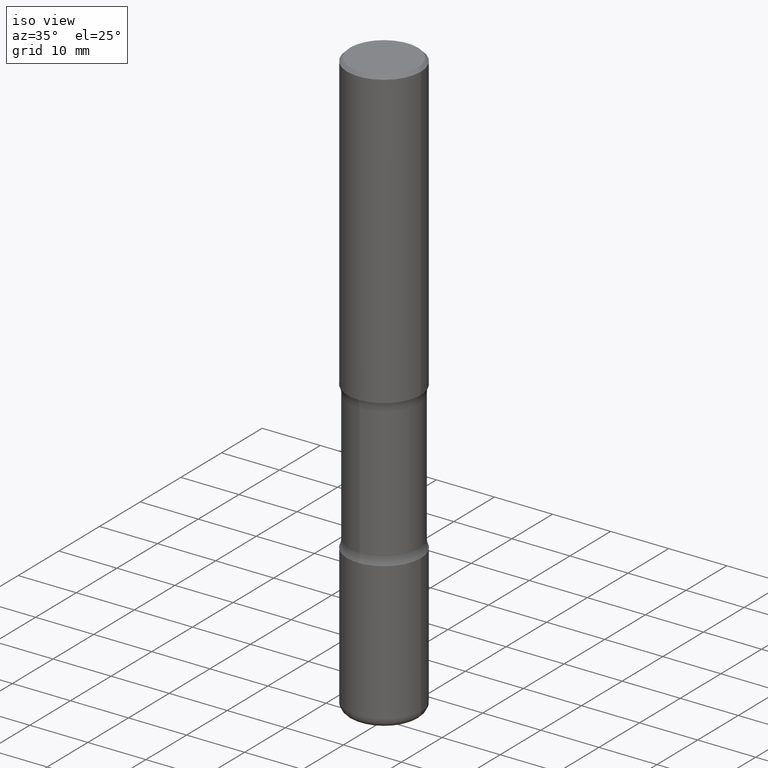
[diagram: clean part render]
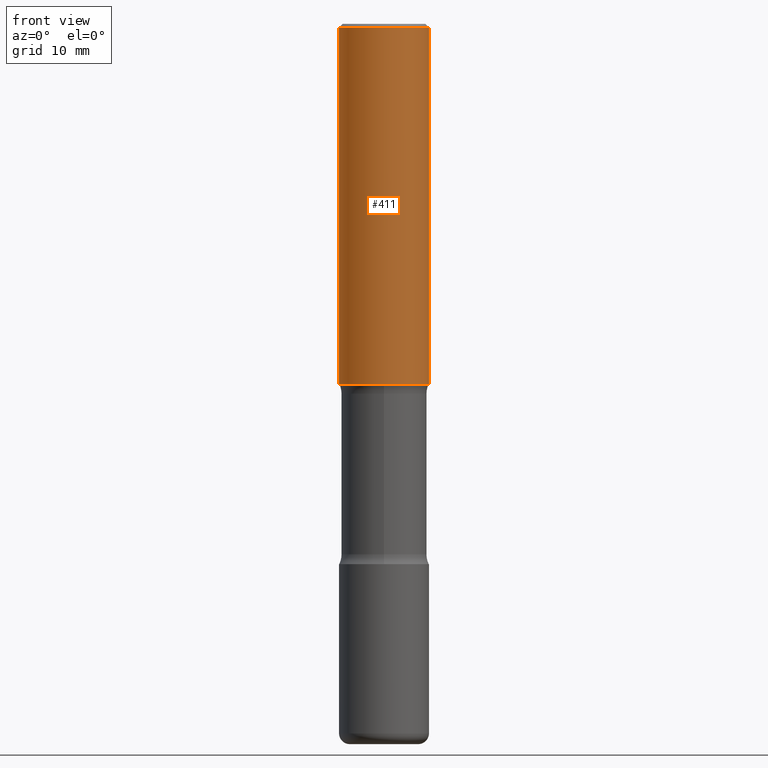
[diagram: tour spotlight — one face highlighted and labeled with its STEP entity id]
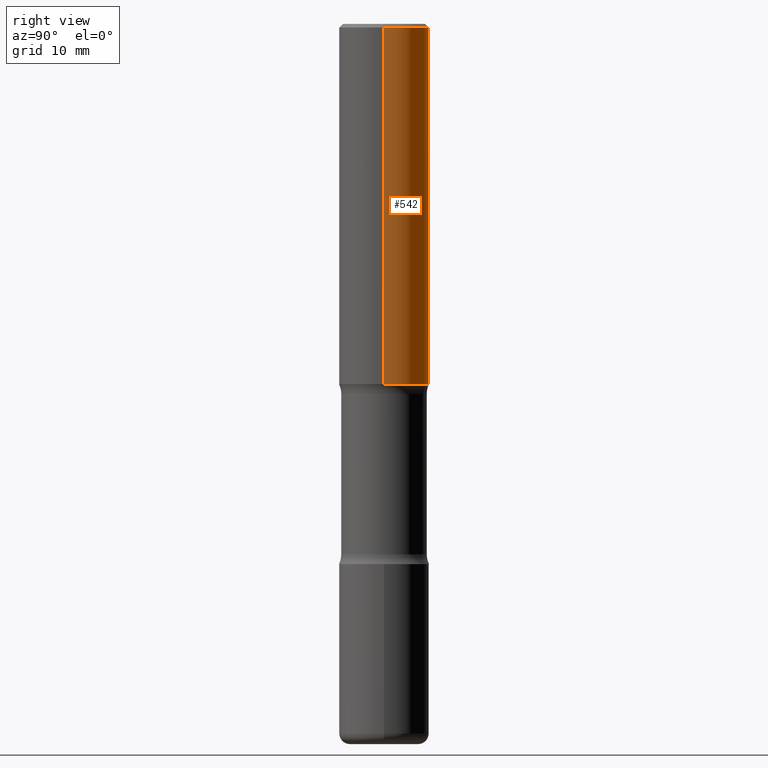
[diagram: tour spotlight — one face highlighted and labeled with its STEP entity id]
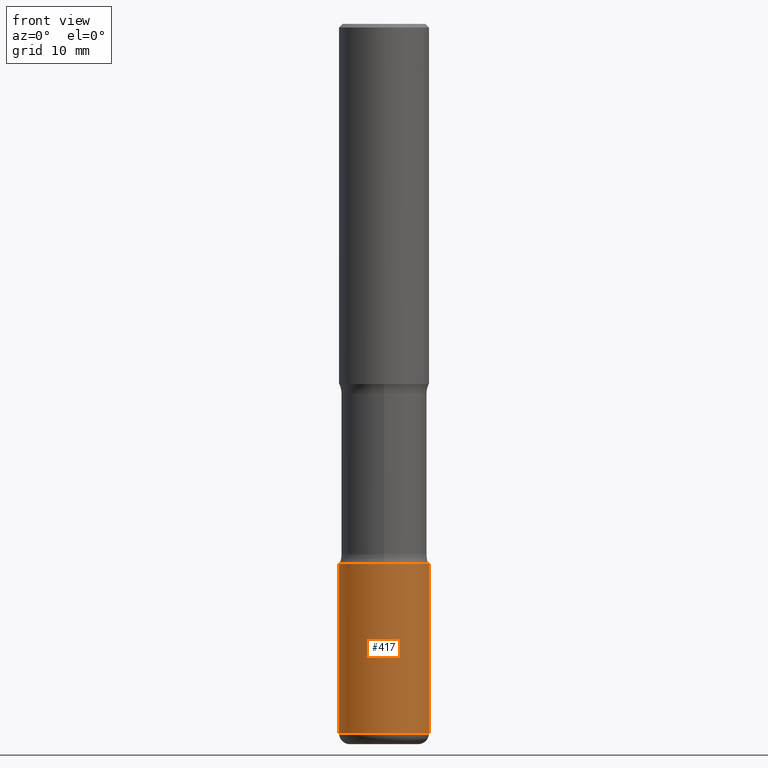
[diagram: tour spotlight — one face highlighted and labeled with its STEP entity id]
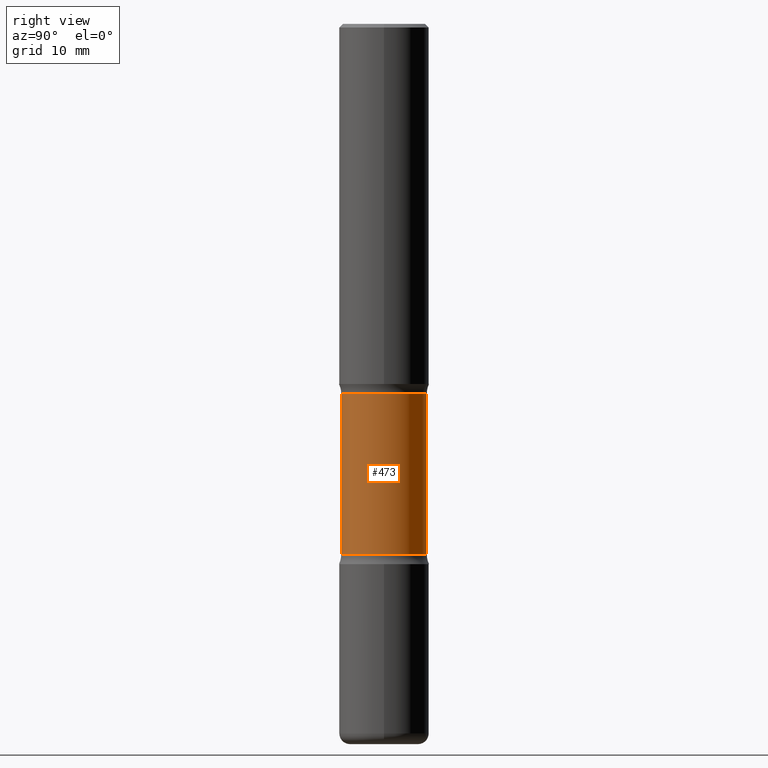
[diagram: tour spotlight — one face highlighted and labeled with its STEP entity id]
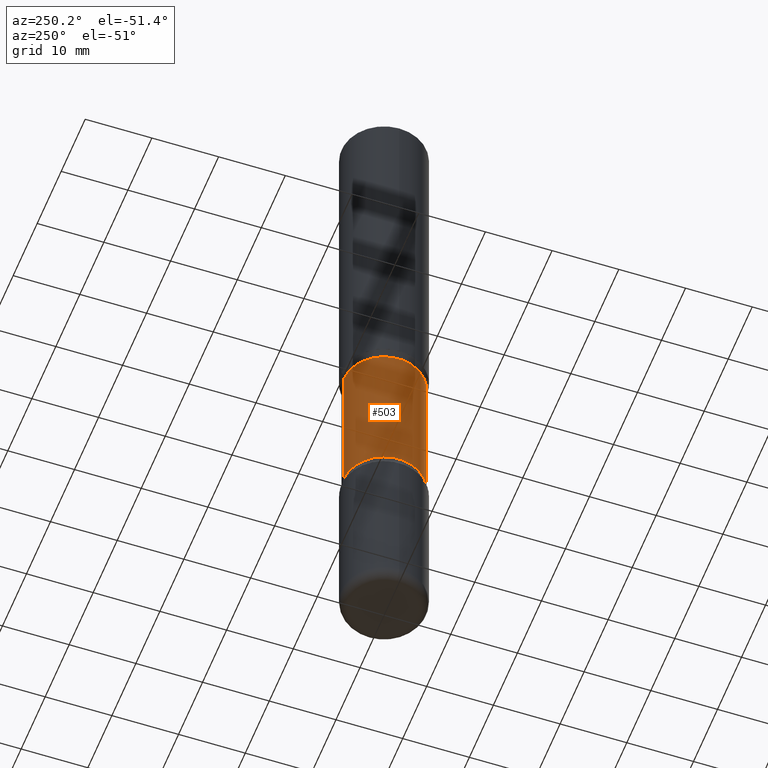
[diagram: tour spotlight — one face highlighted and labeled with its STEP entity id]
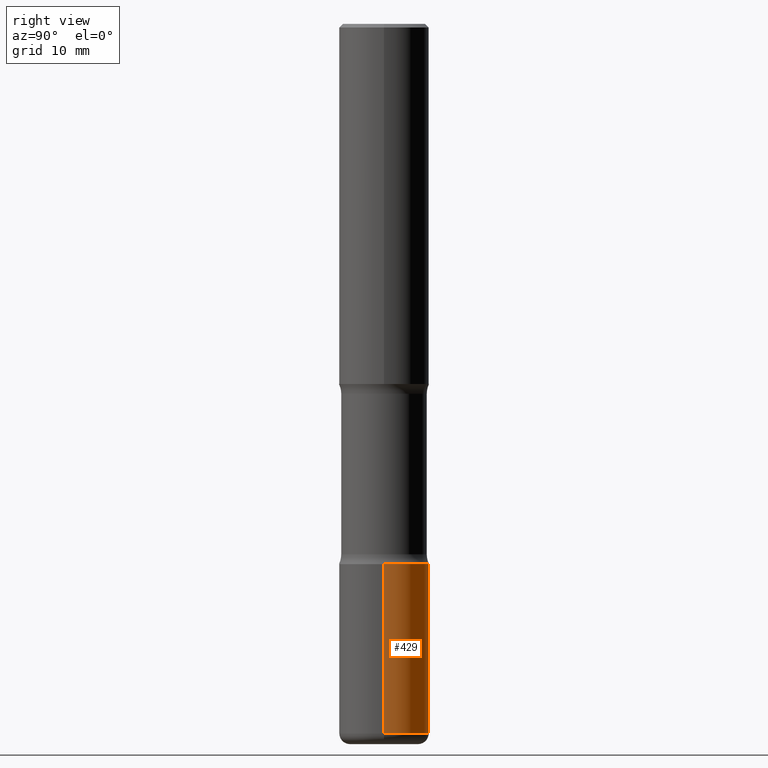
[diagram: tour spotlight — one face highlighted and labeled with its STEP entity id]
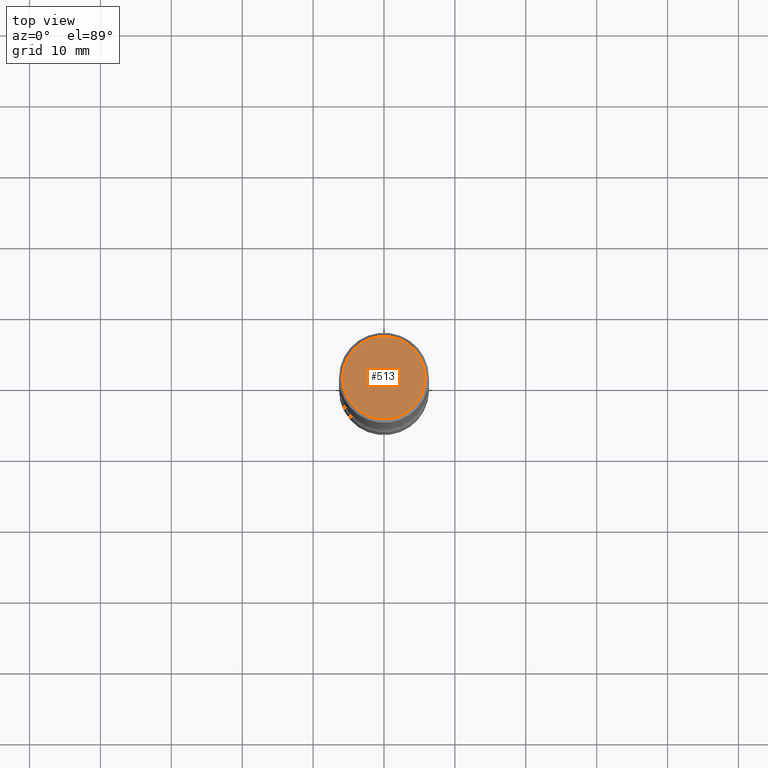
[diagram: tour spotlight — one face highlighted and labeled with its STEP entity id]
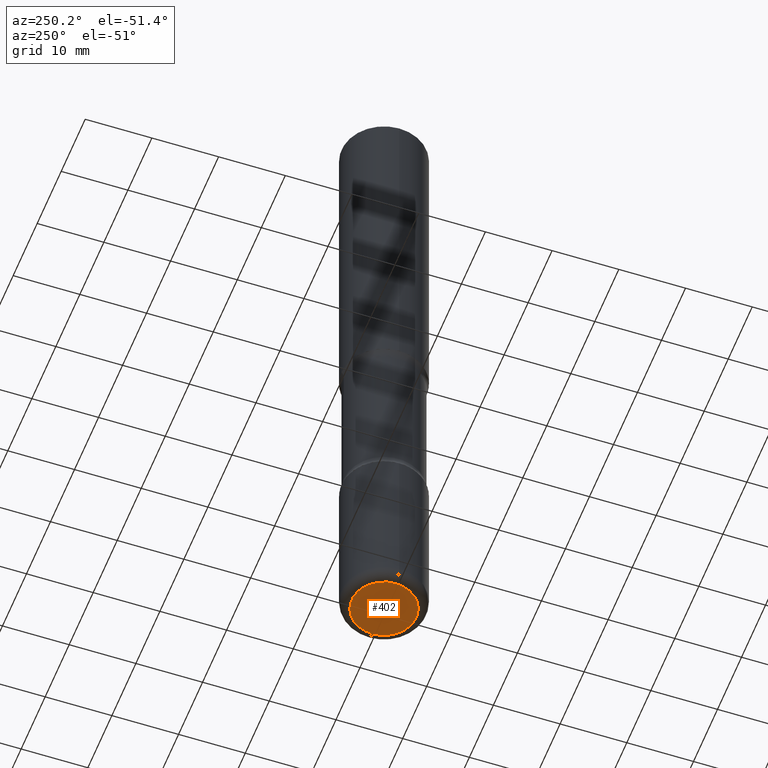
[diagram: tour spotlight — one face highlighted and labeled with its STEP entity id]
A machine part: a face-by-face anatomy tour. The part has 20 B-rep faces; the first image is the clean iso view, then the 8 largest visible faces are spotlighted one at a time (largest first), each with its STEP entity span.

Face 1 — front view, entity #411. In plain terms, the highlighted cylindrical surface (partial cylindrical patch) has radius 6.35 mm, axis along (-0, 0, 1).
Definition (entity closure, byte-faithful):
#10 = VECTOR ( 'NONE', #134, 39.37007874015748143 ) ;
#33 = EDGE_LOOP ( 'NONE', ( #392, #410, #456, #43 ) ) ;
#43 = ORIENTED_EDGE ( 'NONE', *, *, #261, .F. ) ;
#51 = CARTESIAN_POINT ( 'NONE',  ( -0.2500000000000000555, 1.776356839400250859E-15, -1.229733772563726866E-29 ) ) ;
#52 = DIRECTION ( 'NONE',  ( 1.000000000000000000, -6.982962677686267499E-15, 0.000000000000000000 ) ) ;
#60 = DIRECTION ( 'NONE',  ( 1.000000000000000000, -6.982962677686265922E-15, 0.000000000000000000 ) ) ;
#70 = EDGE_CURVE ( 'NONE', #122, #453, #257, .T. ) ;
#122 = VERTEX_POINT ( 'NONE', #376 ) ;
#134 = DIRECTION ( 'NONE',  ( -2.445468806185136877E-29, 3.491481338843145188E-15, 1.000000000000000000 ) ) ;
#143 = DIRECTION ( 'NONE',  ( 1.000000000000000000, -6.982962677686267499E-15, 4.876176775795935793E-29 ) ) ;
#182 = DIRECTION ( 'NONE',  ( -2.445468806185136597E-29, 3.491481338843145583E-15, 1.000000000000000000 ) ) ;
#190 = DIRECTION ( 'NONE',  ( -2.445468806185136597E-29, 3.491481338843145583E-15, 1.000000000000000000 ) ) ;
#217 = CARTESIAN_POINT ( 'NONE',  ( 0.2499999999999999167, -1.784954126219745400E-15, -0.02000000000000006981 ) ) ;
#220 = CARTESIAN_POINT ( 'NONE',  ( 0.2500000000000001665, -8.728703347107858632E-15, -2.000000000000000000 ) ) ;
#239 = AXIS2_PLACEMENT_3D ( 'NONE', #451, #190, #143 ) ;
#254 = VERTEX_POINT ( 'NONE', #217 ) ;
#257 = LINE ( 'NONE', #51, #10 ) ;
#261 = EDGE_CURVE ( 'NONE', #453, #254, #545, .T. ) ;
#273 = CARTESIAN_POINT ( 'NONE',  ( -0.2499999999999999167, 1.675911042644703182E-15, -0.02000000000000006981 ) ) ;
#285 = VERTEX_POINT ( 'NONE', #220 ) ;
#308 = CYLINDRICAL_SURFACE ( 'NONE', #239, 0.2500000000000000555 ) ;
#320 = CARTESIAN_POINT ( 'NONE',  ( 4.890937612370273194E-29, -6.982962677686291165E-15, -2.000000000000000000 ) ) ;
#334 = EDGE_CURVE ( 'NONE', #285, #254, #529, .T. ) ;
#347 = DIRECTION ( 'NONE',  ( -2.445468806185136877E-29, 3.491481338843145188E-15, 1.000000000000000000 ) ) ;
#376 = CARTESIAN_POINT ( 'NONE',  ( -0.2500000000000001665, -1.750039312831323809E-15, -2.000000000000000000 ) ) ;
#379 = AXIS2_PLACEMENT_3D ( 'NONE', #472, #182, #52 ) ;
#384 = CARTESIAN_POINT ( 'NONE',  ( 0.2500000000000000555, -1.745740669421567269E-15, 1.219044193948984228E-29 ) ) ;
#392 = ORIENTED_EDGE ( 'NONE', *, *, #70, .F. ) ;
#399 = FACE_OUTER_BOUND ( 'NONE', #33, .T. ) ;
#410 = ORIENTED_EDGE ( 'NONE', *, *, #498, .T. ) ;
#411 = ADVANCED_FACE ( 'NONE', ( #399 ), #308, .T. ) ;
#451 = CARTESIAN_POINT ( 'NONE',  ( 0.000000000000000000, 0.000000000000000000, 0.000000000000000000 ) ) ;
#453 = VERTEX_POINT ( 'NONE', #273 ) ;
#456 = ORIENTED_EDGE ( 'NONE', *, *, #334, .T. ) ;
#460 = CIRCLE ( 'NONE', #480, 0.2500000000000001665 ) ;
#472 = CARTESIAN_POINT ( 'NONE',  ( 4.890937612370289799E-31, -6.982962677686315028E-17, -0.02000000000000006981 ) ) ;
#480 = AXIS2_PLACEMENT_3D ( 'NONE', #320, #495, #60 ) ;
#495 = DIRECTION ( 'NONE',  ( -2.445468806185136597E-29, 3.491481338843145583E-15, 1.000000000000000000 ) ) ;
#498 = EDGE_CURVE ( 'NONE', #122, #285, #460, .T. ) ;
#529 = LINE ( 'NONE', #384, #555 ) ;
#545 = CIRCLE ( 'NONE', #379, 0.2499999999999999167 ) ;
#555 = VECTOR ( 'NONE', #347, 39.37007874015748143 ) ;

Face 2 — right view, entity #542. In plain terms, the highlighted cylindrical surface (partial cylindrical patch) has radius 6.35 mm, axis along (-0, 0, 1).
Definition (entity closure, byte-faithful):
#3 = AXIS2_PLACEMENT_3D ( 'NONE', #403, #20, #494 ) ;
#10 = VECTOR ( 'NONE', #134, 39.37007874015748143 ) ;
#20 = DIRECTION ( 'NONE',  ( -2.445468806185136597E-29, 3.491481338843145583E-15, 1.000000000000000000 ) ) ;
#28 = CARTESIAN_POINT ( 'NONE',  ( 0.000000000000000000, 0.000000000000000000, 0.000000000000000000 ) ) ;
#51 = CARTESIAN_POINT ( 'NONE',  ( -0.2500000000000000555, 1.776356839400250859E-15, -1.229733772563726866E-29 ) ) ;
#70 = EDGE_CURVE ( 'NONE', #122, #453, #257, .T. ) ;
#75 = FACE_OUTER_BOUND ( 'NONE', #178, .T. ) ;
#122 = VERTEX_POINT ( 'NONE', #376 ) ;
#125 = ORIENTED_EDGE ( 'NONE', *, *, #474, .T. ) ;
#134 = DIRECTION ( 'NONE',  ( -2.445468806185136877E-29, 3.491481338843145188E-15, 1.000000000000000000 ) ) ;
#163 = AXIS2_PLACEMENT_3D ( 'NONE', #28, #501, #196 ) ;
#178 = EDGE_LOOP ( 'NONE', ( #125, #374, #243, #400 ) ) ;
#180 = CARTESIAN_POINT ( 'NONE',  ( 4.890937612370289799E-31, -6.982962677686315028E-17, -0.02000000000000006981 ) ) ;
#196 = DIRECTION ( 'NONE',  ( 1.000000000000000000, -6.982962677686267499E-15, 4.876176775795935793E-29 ) ) ;
#217 = CARTESIAN_POINT ( 'NONE',  ( 0.2499999999999999167, -1.784954126219745400E-15, -0.02000000000000006981 ) ) ;
#220 = CARTESIAN_POINT ( 'NONE',  ( 0.2500000000000001665, -8.728703347107858632E-15, -2.000000000000000000 ) ) ;
#229 = AXIS2_PLACEMENT_3D ( 'NONE', #180, #521, #348 ) ;
#243 = ORIENTED_EDGE ( 'NONE', *, *, #312, .F. ) ;
#244 = CYLINDRICAL_SURFACE ( 'NONE', #163, 0.2500000000000000555 ) ;
#254 = VERTEX_POINT ( 'NONE', #217 ) ;
#257 = LINE ( 'NONE', #51, #10 ) ;
#273 = CARTESIAN_POINT ( 'NONE',  ( -0.2499999999999999167, 1.675911042644703182E-15, -0.02000000000000006981 ) ) ;
#285 = VERTEX_POINT ( 'NONE', #220 ) ;
#312 = EDGE_CURVE ( 'NONE', #254, #453, #315, .T. ) ;
#315 = CIRCLE ( 'NONE', #229, 0.2499999999999999167 ) ;
#334 = EDGE_CURVE ( 'NONE', #285, #254, #529, .T. ) ;
#347 = DIRECTION ( 'NONE',  ( -2.445468806185136877E-29, 3.491481338843145188E-15, 1.000000000000000000 ) ) ;
#348 = DIRECTION ( 'NONE',  ( 1.000000000000000000, -6.982962677686267499E-15, 0.000000000000000000 ) ) ;
#374 = ORIENTED_EDGE ( 'NONE', *, *, #70, .T. ) ;
#376 = CARTESIAN_POINT ( 'NONE',  ( -0.2500000000000001665, -1.750039312831323809E-15, -2.000000000000000000 ) ) ;
#384 = CARTESIAN_POINT ( 'NONE',  ( 0.2500000000000000555, -1.745740669421567269E-15, 1.219044193948984228E-29 ) ) ;
#400 = ORIENTED_EDGE ( 'NONE', *, *, #334, .F. ) ;
#403 = CARTESIAN_POINT ( 'NONE',  ( 4.890937612370273194E-29, -6.982962677686291165E-15, -2.000000000000000000 ) ) ;
#442 = CIRCLE ( 'NONE', #3, 0.2500000000000001665 ) ;
#453 = VERTEX_POINT ( 'NONE', #273 ) ;
#474 = EDGE_CURVE ( 'NONE', #285, #122, #442, .T. ) ;
#494 = DIRECTION ( 'NONE',  ( 1.000000000000000000, -6.982962677686265922E-15, 0.000000000000000000 ) ) ;
#501 = DIRECTION ( 'NONE',  ( -2.445468806185136597E-29, 3.491481338843145583E-15, 1.000000000000000000 ) ) ;
#521 = DIRECTION ( 'NONE',  ( -2.445468806185136597E-29, 3.491481338843145583E-15, 1.000000000000000000 ) ) ;
#529 = LINE ( 'NONE', #384, #555 ) ;
#542 = ADVANCED_FACE ( 'NONE', ( #75 ), #244, .T. ) ;
#555 = VECTOR ( 'NONE', #347, 39.37007874015748143 ) ;

Face 3 — front view, entity #417. In plain terms, the highlighted cylindrical surface (partial cylindrical patch) has radius 6.35 mm, axis along (-0, 0, 1).
Definition (entity closure, byte-faithful):
#2 = DIRECTION ( 'NONE',  ( -2.445468806185136597E-29, 3.491481338843145583E-15, 1.000000000000000000 ) ) ;
#31 = VECTOR ( 'NONE', #258, 39.37007874015748143 ) ;
#42 = LINE ( 'NONE', #177, #31 ) ;
#79 = CARTESIAN_POINT ( 'NONE',  ( 0.2500000000000002776, -1.222018468595100619E-14, -3.000000000000000444 ) ) ;
#86 = DIRECTION ( 'NONE',  ( -2.445468806185136597E-29, 3.491481338843145583E-15, 1.000000000000000000 ) ) ;
#96 = AXIS2_PLACEMENT_3D ( 'NONE', #477, #86, #538 ) ;
#140 = DIRECTION ( 'NONE',  ( -2.445468806185136877E-29, 3.491481338843145188E-15, 1.000000000000000000 ) ) ;
#157 = CARTESIAN_POINT ( 'NONE',  ( -0.2500000000000003331, -1.198007963564174197E-14, -3.939999999999999947 ) ) ;
#167 = VERTEX_POINT ( 'NONE', #79 ) ;
#171 = DIRECTION ( 'NONE',  ( 1.000000000000000000, -6.982962677686270655E-15, 0.000000000000000000 ) ) ;
#174 = VECTOR ( 'NONE', #140, 39.37007874015748143 ) ;
#177 = CARTESIAN_POINT ( 'NONE',  ( 0.2500000000000003331, -1.745740669421569044E-15, 1.219044193948985630E-29 ) ) ;
#184 = CARTESIAN_POINT ( 'NONE',  ( 0.2500000000000003331, -1.550217714446356385E-14, -3.939999999999999947 ) ) ;
#191 = ORIENTED_EDGE ( 'NONE', *, *, #343, .F. ) ;
#192 = DIRECTION ( 'NONE',  ( 1.000000000000000000, -6.982962677686266711E-15, 4.876176775795935793E-29 ) ) ;
#216 = ORIENTED_EDGE ( 'NONE', *, *, #395, .T. ) ;
#232 = EDGE_CURVE ( 'NONE', #423, #167, #42, .T. ) ;
#258 = DIRECTION ( 'NONE',  ( -2.445468806185136877E-29, 3.491481338843145188E-15, 1.000000000000000000 ) ) ;
#274 = CARTESIAN_POINT ( 'NONE',  ( 0.000000000000000000, 0.000000000000000000, 0.000000000000000000 ) ) ;
#280 = FACE_OUTER_BOUND ( 'NONE', #299, .T. ) ;
#298 = AXIS2_PLACEMENT_3D ( 'NONE', #530, #2, #171 ) ;
#299 = EDGE_LOOP ( 'NONE', ( #191, #216, #358, #463 ) ) ;
#303 = CARTESIAN_POINT ( 'NONE',  ( -0.2500000000000003331, 1.776356839400252831E-15, -1.229733772563727987E-29 ) ) ;
#306 = AXIS2_PLACEMENT_3D ( 'NONE', #274, #486, #192 ) ;
#322 = CIRCLE ( 'NONE', #96, 0.2500000000000003886 ) ;
#343 = EDGE_CURVE ( 'NONE', #546, #519, #524, .T. ) ;
#358 = ORIENTED_EDGE ( 'NONE', *, *, #232, .T. ) ;
#362 = CIRCLE ( 'NONE', #298, 0.2500000000000002776 ) ;
#375 = CARTESIAN_POINT ( 'NONE',  ( -0.2500000000000002776, -1.033908340638546235E-14, -3.000000000000000444 ) ) ;
#378 = EDGE_CURVE ( 'NONE', #519, #167, #362, .T. ) ;
#395 = EDGE_CURVE ( 'NONE', #546, #423, #322, .T. ) ;
#407 = CYLINDRICAL_SURFACE ( 'NONE', #306, 0.2500000000000003331 ) ;
#417 = ADVANCED_FACE ( 'NONE', ( #280 ), #407, .T. ) ;
#423 = VERTEX_POINT ( 'NONE', #184 ) ;
#463 = ORIENTED_EDGE ( 'NONE', *, *, #378, .F. ) ;
#477 = CARTESIAN_POINT ( 'NONE',  ( 9.635147096369438236E-29, -1.375643647504199401E-14, -3.939999999999999947 ) ) ;
#486 = DIRECTION ( 'NONE',  ( -2.445468806185136597E-29, 3.491481338843145583E-15, 1.000000000000000000 ) ) ;
#519 = VERTEX_POINT ( 'NONE', #375 ) ;
#524 = LINE ( 'NONE', #303, #174 ) ;
#530 = CARTESIAN_POINT ( 'NONE',  ( 7.336406418555409790E-29, -1.047444401652943635E-14, -3.000000000000000444 ) ) ;
#538 = DIRECTION ( 'NONE',  ( 1.000000000000000000, -6.982962677686267499E-15, 0.000000000000000000 ) ) ;
#546 = VERTEX_POINT ( 'NONE', #157 ) ;

Face 4 — right view, entity #473. In plain terms, the highlighted cylindrical surface (partial cylindrical patch) has radius 6.0325 mm, axis along (0, -0, -1).
Definition (entity closure, byte-faithful):
#15 = EDGE_CURVE ( 'NONE', #366, #549, #431, .T. ) ;
#18 = EDGE_CURVE ( 'NONE', #263, #549, #214, .T. ) ;
#35 = DIRECTION ( 'NONE',  ( 2.530378452311521502E-29, -3.369885892833230592E-15, -1.000000000000000000 ) ) ;
#38 = AXIS2_PLACEMENT_3D ( 'NONE', #415, #373, #328 ) ;
#84 = ORIENTED_EDGE ( 'NONE', *, *, #540, .F. ) ;
#97 = CYLINDRICAL_SURFACE ( 'NONE', #432, 0.2375000000000000999 ) ;
#99 = EDGE_LOOP ( 'NONE', ( #506, #539, #389, #84 ) ) ;
#104 = VECTOR ( 'NONE', #35, 39.37007874015748143 ) ;
#112 = VERTEX_POINT ( 'NONE', #335 ) ;
#151 = DIRECTION ( 'NONE',  ( 6.982962677686265133E-15, 1.000000000000000000, -3.450755360418014766E-15 ) ) ;
#175 = DIRECTION ( 'NONE',  ( 2.530378452311521502E-29, -3.369885892833230592E-15, -1.000000000000000000 ) ) ;
#188 = VECTOR ( 'NONE', #175, 39.37007874015748143 ) ;
#203 = CARTESIAN_POINT ( 'NONE',  ( -1.672246386956739071E-15, -0.2375000000000103417, -2.945513763205740876 ) ) ;
#214 = LINE ( 'NONE', #219, #188 ) ;
#219 = CARTESIAN_POINT ( 'NONE',  ( -1.629368274470640415E-15, -0.2375000000000139222, -3.999999999999999556 ) ) ;
#225 = DIRECTION ( 'NONE',  ( 6.982962677686265133E-15, 1.000000000000000000, -2.300503573612010239E-15 ) ) ;
#263 = VERTEX_POINT ( 'NONE', #428 ) ;
#270 = AXIS2_PLACEMENT_3D ( 'NONE', #293, #422, #151 ) ;
#293 = CARTESIAN_POINT ( 'NONE',  ( 4.943898765775623630E-29, -7.288170524422749615E-15, -2.054486236794258680 ) ) ;
#317 = CARTESIAN_POINT ( 'NONE',  ( 9.866784870866931853E-29, -1.384432990936266734E-14, -4.000000000000000000 ) ) ;
#318 = FACE_OUTER_BOUND ( 'NONE', #99, .T. ) ;
#324 = LINE ( 'NONE', #325, #104 ) ;
#325 = CARTESIAN_POINT ( 'NONE',  ( 1.658453635950587543E-15, 0.2374999999999862776, -4.000000000000000888 ) ) ;
#328 = DIRECTION ( 'NONE',  ( 6.982962677686265133E-15, 1.000000000000000000, -2.300503573612010239E-15 ) ) ;
#335 = CARTESIAN_POINT ( 'NONE',  ( 1.658453635950538436E-15, 0.2374999999999928557, -2.054486236794259568 ) ) ;
#366 = VERTEX_POINT ( 'NONE', #386 ) ;
#373 = DIRECTION ( 'NONE',  ( 2.530378452311521502E-29, -3.369885892833230986E-15, -1.000000000000000000 ) ) ;
#386 = CARTESIAN_POINT ( 'NONE',  ( 1.658453635950560525E-15, 0.2374999999999897748, -2.945513763205741764 ) ) ;
#389 = ORIENTED_EDGE ( 'NONE', *, *, #15, .F. ) ;
#415 = CARTESIAN_POINT ( 'NONE',  ( 7.198535619023675570E-29, -1.029083161580289368E-14, -2.945513763205741320 ) ) ;
#422 = DIRECTION ( 'NONE',  ( 2.530378452311521502E-29, -3.369885892833230986E-15, -1.000000000000000000 ) ) ;
#428 = CARTESIAN_POINT ( 'NONE',  ( -1.672246386956763723E-15, -0.2375000000000074274, -2.054486236794258236 ) ) ;
#431 = CIRCLE ( 'NONE', #38, 0.2375000000000000722 ) ;
#432 = AXIS2_PLACEMENT_3D ( 'NONE', #317, #446, #225 ) ;
#446 = DIRECTION ( 'NONE',  ( 2.530378452311521502E-29, -3.369885892833230986E-15, -1.000000000000000000 ) ) ;
#473 = ADVANCED_FACE ( 'NONE', ( #318 ), #97, .T. ) ;
#482 = CIRCLE ( 'NONE', #270, 0.2375000000000001277 ) ;
#506 = ORIENTED_EDGE ( 'NONE', *, *, #559, .T. ) ;
#539 = ORIENTED_EDGE ( 'NONE', *, *, #18, .T. ) ;
#540 = EDGE_CURVE ( 'NONE', #112, #366, #324, .T. ) ;
#549 = VERTEX_POINT ( 'NONE', #203 ) ;
#559 = EDGE_CURVE ( 'NONE', #112, #263, #482, .T. ) ;

Face 5 — auxiliary view, entity #503. In plain terms, the highlighted cylindrical surface (partial cylindrical patch) has radius 6.0325 mm, axis along (0, -0, -1).
Definition (entity closure, byte-faithful):
#16 = DIRECTION ( 'NONE',  ( 2.530378452311521502E-29, -3.369885892833230986E-15, -1.000000000000000000 ) ) ;
#18 = EDGE_CURVE ( 'NONE', #263, #549, #214, .T. ) ;
#19 = DIRECTION ( 'NONE',  ( 2.530378452311521502E-29, -3.369885892833230986E-15, -1.000000000000000000 ) ) ;
#35 = DIRECTION ( 'NONE',  ( 2.530378452311521502E-29, -3.369885892833230592E-15, -1.000000000000000000 ) ) ;
#40 = EDGE_CURVE ( 'NONE', #549, #366, #404, .T. ) ;
#64 = CARTESIAN_POINT ( 'NONE',  ( 4.943898765775623630E-29, -7.288170524422749615E-15, -2.054486236794258680 ) ) ;
#101 = DIRECTION ( 'NONE',  ( 6.982962677686265133E-15, 1.000000000000000000, -2.300503573612010239E-15 ) ) ;
#104 = VECTOR ( 'NONE', #35, 39.37007874015748143 ) ;
#112 = VERTEX_POINT ( 'NONE', #335 ) ;
#162 = EDGE_LOOP ( 'NONE', ( #339, #427, #336, #508 ) ) ;
#175 = DIRECTION ( 'NONE',  ( 2.530378452311521502E-29, -3.369885892833230592E-15, -1.000000000000000000 ) ) ;
#188 = VECTOR ( 'NONE', #175, 39.37007874015748143 ) ;
#203 = CARTESIAN_POINT ( 'NONE',  ( -1.672246386956739071E-15, -0.2375000000000103417, -2.945513763205740876 ) ) ;
#214 = LINE ( 'NONE', #219, #188 ) ;
#219 = CARTESIAN_POINT ( 'NONE',  ( -1.629368274470640415E-15, -0.2375000000000139222, -3.999999999999999556 ) ) ;
#224 = FACE_OUTER_BOUND ( 'NONE', #162, .T. ) ;
#233 = CARTESIAN_POINT ( 'NONE',  ( 9.866784870866931853E-29, -1.384432990936266734E-14, -4.000000000000000000 ) ) ;
#255 = DIRECTION ( 'NONE',  ( 2.530378452311521502E-29, -3.369885892833230986E-15, -1.000000000000000000 ) ) ;
#260 = AXIS2_PLACEMENT_3D ( 'NONE', #64, #16, #533 ) ;
#263 = VERTEX_POINT ( 'NONE', #428 ) ;
#314 = CIRCLE ( 'NONE', #260, 0.2375000000000001277 ) ;
#324 = LINE ( 'NONE', #325, #104 ) ;
#325 = CARTESIAN_POINT ( 'NONE',  ( 1.658453635950587543E-15, 0.2374999999999862776, -4.000000000000000888 ) ) ;
#329 = AXIS2_PLACEMENT_3D ( 'NONE', #233, #19, #101 ) ;
#335 = CARTESIAN_POINT ( 'NONE',  ( 1.658453635950538436E-15, 0.2374999999999928557, -2.054486236794259568 ) ) ;
#336 = ORIENTED_EDGE ( 'NONE', *, *, #540, .T. ) ;
#339 = ORIENTED_EDGE ( 'NONE', *, *, #18, .F. ) ;
#366 = VERTEX_POINT ( 'NONE', #386 ) ;
#386 = CARTESIAN_POINT ( 'NONE',  ( 1.658453635950560525E-15, 0.2374999999999897748, -2.945513763205741764 ) ) ;
#397 = AXIS2_PLACEMENT_3D ( 'NONE', #469, #255, #476 ) ;
#401 = CYLINDRICAL_SURFACE ( 'NONE', #329, 0.2375000000000000999 ) ;
#404 = CIRCLE ( 'NONE', #397, 0.2375000000000000722 ) ;
#427 = ORIENTED_EDGE ( 'NONE', *, *, #436, .T. ) ;
#428 = CARTESIAN_POINT ( 'NONE',  ( -1.672246386956763723E-15, -0.2375000000000074274, -2.054486236794258236 ) ) ;
#436 = EDGE_CURVE ( 'NONE', #263, #112, #314, .T. ) ;
#469 = CARTESIAN_POINT ( 'NONE',  ( 7.198535619023675570E-29, -1.029083161580289368E-14, -2.945513763205741320 ) ) ;
#476 = DIRECTION ( 'NONE',  ( 6.982962677686265133E-15, 1.000000000000000000, -2.300503573612010239E-15 ) ) ;
#503 = ADVANCED_FACE ( 'NONE', ( #224 ), #401, .T. ) ;
#508 = ORIENTED_EDGE ( 'NONE', *, *, #40, .F. ) ;
#533 = DIRECTION ( 'NONE',  ( 6.982962677686265133E-15, 1.000000000000000000, -3.450755360418014766E-15 ) ) ;
#540 = EDGE_CURVE ( 'NONE', #112, #366, #324, .T. ) ;
#549 = VERTEX_POINT ( 'NONE', #203 ) ;

Face 6 — right view, entity #429. In plain terms, the highlighted cylindrical surface (partial cylindrical patch) has radius 6.35 mm, axis along (-0, 0, 1).
Definition (entity closure, byte-faithful):
#1 = ORIENTED_EDGE ( 'NONE', *, *, #173, .T. ) ;
#11 = AXIS2_PLACEMENT_3D ( 'NONE', #12, #45, #53 ) ;
#12 = CARTESIAN_POINT ( 'NONE',  ( 7.336406418555409790E-29, -1.047444401652943635E-14, -3.000000000000000444 ) ) ;
#31 = VECTOR ( 'NONE', #258, 39.37007874015748143 ) ;
#42 = LINE ( 'NONE', #177, #31 ) ;
#45 = DIRECTION ( 'NONE',  ( -2.445468806185136597E-29, 3.491481338843145583E-15, 1.000000000000000000 ) ) ;
#53 = DIRECTION ( 'NONE',  ( 1.000000000000000000, -6.982962677686270655E-15, 0.000000000000000000 ) ) ;
#59 = EDGE_LOOP ( 'NONE', ( #1, #186, #443, #242 ) ) ;
#79 = CARTESIAN_POINT ( 'NONE',  ( 0.2500000000000002776, -1.222018468595100619E-14, -3.000000000000000444 ) ) ;
#140 = DIRECTION ( 'NONE',  ( -2.445468806185136877E-29, 3.491481338843145188E-15, 1.000000000000000000 ) ) ;
#145 = AXIS2_PLACEMENT_3D ( 'NONE', #359, #441, #148 ) ;
#147 = FACE_OUTER_BOUND ( 'NONE', #59, .T. ) ;
#148 = DIRECTION ( 'NONE',  ( 1.000000000000000000, -6.982962677686266711E-15, 4.876176775795935793E-29 ) ) ;
#157 = CARTESIAN_POINT ( 'NONE',  ( -0.2500000000000003331, -1.198007963564174197E-14, -3.939999999999999947 ) ) ;
#167 = VERTEX_POINT ( 'NONE', #79 ) ;
#173 = EDGE_CURVE ( 'NONE', #423, #546, #197, .T. ) ;
#174 = VECTOR ( 'NONE', #140, 39.37007874015748143 ) ;
#177 = CARTESIAN_POINT ( 'NONE',  ( 0.2500000000000003331, -1.745740669421569044E-15, 1.219044193948985630E-29 ) ) ;
#184 = CARTESIAN_POINT ( 'NONE',  ( 0.2500000000000003331, -1.550217714446356385E-14, -3.939999999999999947 ) ) ;
#186 = ORIENTED_EDGE ( 'NONE', *, *, #343, .T. ) ;
#189 = CIRCLE ( 'NONE', #11, 0.2500000000000002776 ) ;
#197 = CIRCLE ( 'NONE', #251, 0.2500000000000003886 ) ;
#232 = EDGE_CURVE ( 'NONE', #423, #167, #42, .T. ) ;
#242 = ORIENTED_EDGE ( 'NONE', *, *, #232, .F. ) ;
#251 = AXIS2_PLACEMENT_3D ( 'NONE', #383, #284, #462 ) ;
#258 = DIRECTION ( 'NONE',  ( -2.445468806185136877E-29, 3.491481338843145188E-15, 1.000000000000000000 ) ) ;
#266 = CYLINDRICAL_SURFACE ( 'NONE', #145, 0.2500000000000003331 ) ;
#268 = EDGE_CURVE ( 'NONE', #167, #519, #189, .T. ) ;
#284 = DIRECTION ( 'NONE',  ( -2.445468806185136597E-29, 3.491481338843145583E-15, 1.000000000000000000 ) ) ;
#303 = CARTESIAN_POINT ( 'NONE',  ( -0.2500000000000003331, 1.776356839400252831E-15, -1.229733772563727987E-29 ) ) ;
#343 = EDGE_CURVE ( 'NONE', #546, #519, #524, .T. ) ;
#359 = CARTESIAN_POINT ( 'NONE',  ( 0.000000000000000000, 0.000000000000000000, 0.000000000000000000 ) ) ;
#375 = CARTESIAN_POINT ( 'NONE',  ( -0.2500000000000002776, -1.033908340638546235E-14, -3.000000000000000444 ) ) ;
#383 = CARTESIAN_POINT ( 'NONE',  ( 9.635147096369438236E-29, -1.375643647504199401E-14, -3.939999999999999947 ) ) ;
#423 = VERTEX_POINT ( 'NONE', #184 ) ;
#429 = ADVANCED_FACE ( 'NONE', ( #147 ), #266, .T. ) ;
#441 = DIRECTION ( 'NONE',  ( -2.445468806185136597E-29, 3.491481338843145583E-15, 1.000000000000000000 ) ) ;
#443 = ORIENTED_EDGE ( 'NONE', *, *, #268, .F. ) ;
#462 = DIRECTION ( 'NONE',  ( 1.000000000000000000, -6.982962677686267499E-15, 0.000000000000000000 ) ) ;
#519 = VERTEX_POINT ( 'NONE', #375 ) ;
#524 = LINE ( 'NONE', #303, #174 ) ;
#546 = VERTEX_POINT ( 'NONE', #157 ) ;

Face 7 — top view, entity #513. In plain terms, the highlighted planar face has unit normal (0, -0, -1).
Definition (entity closure, byte-faithful):
#21 = AXIS2_PLACEMENT_3D ( 'NONE', #365, #409, #368 ) ;
#30 = CARTESIAN_POINT ( 'NONE',  ( 0.000000000000000000, 0.000000000000000000, 0.000000000000000000 ) ) ;
#55 = ORIENTED_EDGE ( 'NONE', *, *, #138, .T. ) ;
#63 = VERTEX_POINT ( 'NONE', #520 ) ;
#80 = EDGE_LOOP ( 'NONE', ( #420, #55 ) ) ;
#124 = DIRECTION ( 'NONE',  ( 1.000000000000000000, -6.982962677686267499E-15, 4.876176775795936353E-29 ) ) ;
#130 = DIRECTION ( 'NONE',  ( 1.000000000000000000, -6.982962677686267499E-15, 4.876176775795936353E-29 ) ) ;
#138 = EDGE_CURVE ( 'NONE', #421, #63, #237, .T. ) ;
#181 = CIRCLE ( 'NONE', #499, 0.2299999999999998990 ) ;
#187 = FACE_OUTER_BOUND ( 'NONE', #80, .T. ) ;
#237 = CIRCLE ( 'NONE', #287, 0.2299999999999998990 ) ;
#287 = AXIS2_PLACEMENT_3D ( 'NONE', #30, #510, #124 ) ;
#301 = CARTESIAN_POINT ( 'NONE',  ( 0.000000000000000000, 0.000000000000000000, 0.000000000000000000 ) ) ;
#355 = CARTESIAN_POINT ( 'NONE',  ( 0.2299999999999998990, -1.681434332853598617E-15, 1.149527484987432660E-29 ) ) ;
#365 = CARTESIAN_POINT ( 'NONE',  ( 1.606081415867840476E-15, 0.2299999999999998990, -8.030407079339231961E-16 ) ) ;
#368 = DIRECTION ( 'NONE',  ( -1.000000000000000000, 6.982962677686265922E-15, -4.876176775795935793E-29 ) ) ;
#388 = EDGE_CURVE ( 'NONE', #63, #421, #181, .T. ) ;
#409 = DIRECTION ( 'NONE',  ( 2.438088387897960049E-29, -3.491481338843145188E-15, -1.000000000000000000 ) ) ;
#420 = ORIENTED_EDGE ( 'NONE', *, *, #388, .T. ) ;
#421 = VERTEX_POINT ( 'NONE', #355 ) ;
#492 = PLANE ( 'NONE',  #21 ) ;
#499 = AXIS2_PLACEMENT_3D ( 'NONE', #301, #518, #130 ) ;
#510 = DIRECTION ( 'NONE',  ( -2.445468806185136597E-29, 3.491481338843145583E-15, 1.000000000000000000 ) ) ;
#513 = ADVANCED_FACE ( 'NONE', ( #187 ), #492, .F. ) ;
#518 = DIRECTION ( 'NONE',  ( -2.445468806185136597E-29, 3.491481338843145583E-15, 1.000000000000000000 ) ) ;
#520 = CARTESIAN_POINT ( 'NONE',  ( -0.2299999999999998990, 1.640996229256271928E-15, -1.135408596578605420E-29 ) ) ;

Face 8 — auxiliary view, entity #402. In plain terms, the highlighted planar face has unit normal (0, -0, -1).
Definition (entity closure, byte-faithful):
#24 = PLANE ( 'NONE',  #82 ) ;
#25 = DIRECTION ( 'NONE',  ( -1.000000000000000000, 6.982962677686265922E-15, -4.876176775795935793E-29 ) ) ;
#58 = AXIS2_PLACEMENT_3D ( 'NONE', #484, #449, #541 ) ;
#61 = DIRECTION ( 'NONE',  ( 2.438088387897960049E-29, -3.491481338843145188E-15, -1.000000000000000000 ) ) ;
#82 = AXIS2_PLACEMENT_3D ( 'NONE', #223, #61, #25 ) ;
#95 = FACE_OUTER_BOUND ( 'NONE', #557, .T. ) ;
#114 = CARTESIAN_POINT ( 'NONE',  ( -0.1900000000000003630, -1.229798689653506559E-14, -4.000000000000000000 ) ) ;
#128 = CIRCLE ( 'NONE', #58, 0.1900000000000003630 ) ;
#133 = CARTESIAN_POINT ( 'NONE',  ( 9.781875224740546387E-29, -1.396592535537258233E-14, -4.000000000000000000 ) ) ;
#136 = CIRCLE ( 'NONE', #342, 0.1900000000000003630 ) ;
#210 = VERTEX_POINT ( 'NONE', #114 ) ;
#211 = DIRECTION ( 'NONE',  ( -2.445468806185136597E-29, 3.491481338843145583E-15, 1.000000000000000000 ) ) ;
#223 = CARTESIAN_POINT ( 'NONE',  ( 9.781875224740546387E-29, -1.396592535537258233E-14, -4.000000000000000000 ) ) ;
#295 = EDGE_CURVE ( 'NONE', #485, #210, #136, .T. ) ;
#342 = AXIS2_PLACEMENT_3D ( 'NONE', #133, #211, #345 ) ;
#345 = DIRECTION ( 'NONE',  ( 1.000000000000000000, -6.982962677686269077E-15, 0.000000000000000000 ) ) ;
#377 = ORIENTED_EDGE ( 'NONE', *, *, #454, .F. ) ;
#402 = ADVANCED_FACE ( 'NONE', ( #95 ), #24, .T. ) ;
#445 = CARTESIAN_POINT ( 'NONE',  ( 0.1900000000000003630, -1.529268826413297711E-14, -4.000000000000000000 ) ) ;
#449 = DIRECTION ( 'NONE',  ( -2.445468806185136597E-29, 3.491481338843145583E-15, 1.000000000000000000 ) ) ;
#454 = EDGE_CURVE ( 'NONE', #210, #485, #128, .T. ) ;
#484 = CARTESIAN_POINT ( 'NONE',  ( 9.781875224740546387E-29, -1.396592535537258233E-14, -4.000000000000000000 ) ) ;
#485 = VERTEX_POINT ( 'NONE', #445 ) ;
#541 = DIRECTION ( 'NONE',  ( 1.000000000000000000, -6.982962677686269077E-15, 0.000000000000000000 ) ) ;
#553 = ORIENTED_EDGE ( 'NONE', *, *, #295, .F. ) ;
#557 = EDGE_LOOP ( 'NONE', ( #553, #377 ) ) ;